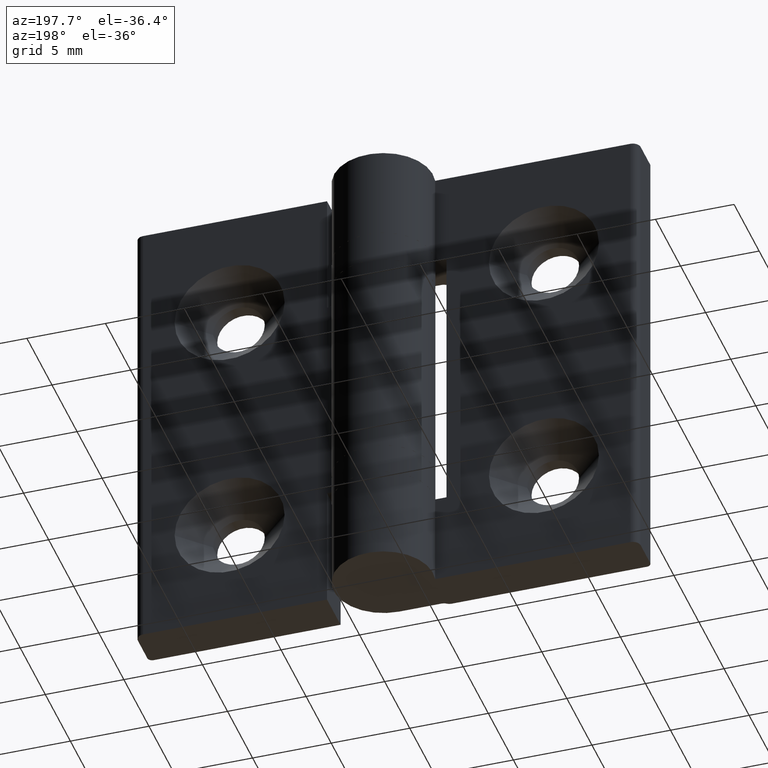
[diagram: clean part render]
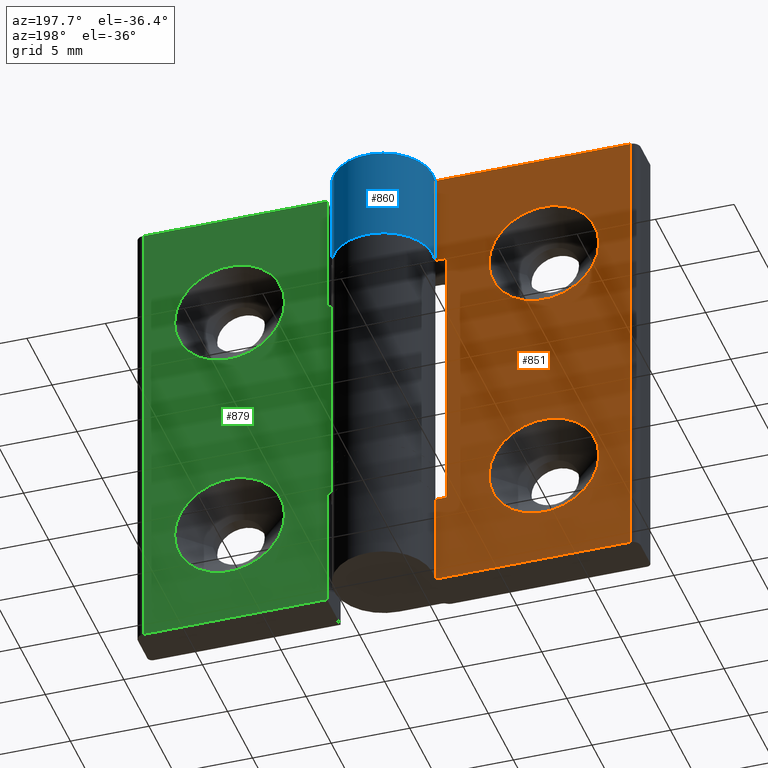
[diagram: same view with three faces highlighted in distinct colors, each labeled with its STEP entity id]
A machine part, auxiliary view with three faces highlighted in distinct colors.
Their STEP definitions:

[orange] entity #851 — the highlighted planar face has unit normal (0, 1, 0).
#54=FACE_BOUND('',#164,.T.);
#55=FACE_BOUND('',#165,.T.);
#83=PLANE('',#917);
#109=FACE_OUTER_BOUND('',#163,.T.);
#163=EDGE_LOOP('',(#630,#631,#632,#633,#634,#635,#636,#637));
#164=EDGE_LOOP('',(#638));
#165=EDGE_LOOP('',(#639));
#247=LINE('',#1330,#308);
#250=LINE('',#1345,#311);
#251=LINE('',#1348,#312);
#252=LINE('',#1350,#313);
#253=LINE('',#1352,#314);
#254=LINE('',#1354,#315);
#255=LINE('',#1356,#316);
#256=LINE('',#1357,#317);
#308=VECTOR('',#1041,12.4177929985155);
#311=VECTOR('',#1056,30.);
#312=VECTOR('',#1059,12.4177929985155);
#313=VECTOR('',#1060,6.);
#314=VECTOR('',#1061,0.717792998515511);
#315=VECTOR('',#1062,18.);
#316=VECTOR('',#1063,0.717792998515515);
#317=VECTOR('',#1064,6.);
#369=CIRCLE('',#918,3.5);
#370=CIRCLE('',#919,3.5);
#422=VERTEX_POINT('',#1327);
#423=VERTEX_POINT('',#1329);
#429=VERTEX_POINT('',#1343);
#430=VERTEX_POINT('',#1347);
#431=VERTEX_POINT('',#1349);
#432=VERTEX_POINT('',#1351);
#433=VERTEX_POINT('',#1353);
#434=VERTEX_POINT('',#1355);
#435=VERTEX_POINT('',#1358);
#436=VERTEX_POINT('',#1360);
#506=EDGE_CURVE('',#422,#423,#247,.T.);
#514=EDGE_CURVE('',#429,#422,#250,.T.);
#515=EDGE_CURVE('',#429,#430,#251,.T.);
#516=EDGE_CURVE('',#431,#430,#252,.T.);
#517=EDGE_CURVE('',#431,#432,#253,.T.);
#518=EDGE_CURVE('',#432,#433,#254,.T.);
#519=EDGE_CURVE('',#433,#434,#255,.T.);
#520=EDGE_CURVE('',#423,#434,#256,.T.);
#521=EDGE_CURVE('',#435,#435,#369,.T.);
#522=EDGE_CURVE('',#436,#436,#370,.T.);
#630=ORIENTED_EDGE('',*,*,#514,.F.);
#631=ORIENTED_EDGE('',*,*,#515,.T.);
#632=ORIENTED_EDGE('',*,*,#516,.F.);
#633=ORIENTED_EDGE('',*,*,#517,.T.);
#634=ORIENTED_EDGE('',*,*,#518,.T.);
#635=ORIENTED_EDGE('',*,*,#519,.T.);
#636=ORIENTED_EDGE('',*,*,#520,.F.);
#637=ORIENTED_EDGE('',*,*,#506,.F.);
#638=ORIENTED_EDGE('',*,*,#521,.T.);
#639=ORIENTED_EDGE('',*,*,#522,.T.);
#851=ADVANCED_FACE('',(#109,#54,#55),#83,.T.);
#917=AXIS2_PLACEMENT_3D('',#1346,#1057,#1058);
#918=AXIS2_PLACEMENT_3D('',#1359,#1065,#1066);
#919=AXIS2_PLACEMENT_3D('',#1361,#1067,#1068);
#1041=DIRECTION('',(1.,0.,0.));
#1056=DIRECTION('',(0.,0.,-1.));
#1057=DIRECTION('center_axis',(0.,1.,0.));
#1058=DIRECTION('ref_axis',(1.,0.,0.));
#1059=DIRECTION('',(1.,0.,0.));
#1060=DIRECTION('',(0.,0.,1.));
#1061=DIRECTION('',(-1.,0.,2.17565612461828E-16));
#1062=DIRECTION('',(-2.46716227694479E-16,0.,-1.));
#1063=DIRECTION('',(1.,0.,0.));
#1064=DIRECTION('',(0.,0.,1.));
#1065=DIRECTION('center_axis',(0.,-1.,0.));
#1066=DIRECTION('ref_axis',(1.,0.,0.));
#1067=DIRECTION('center_axis',(0.,-1.,0.));
#1068=DIRECTION('ref_axis',(1.,0.,0.));
#1327=CARTESIAN_POINT('',(-15.5,2.7,-30.));
#1329=CARTESIAN_POINT('',(-3.08220700148449,2.7,-30.));
#1330=CARTESIAN_POINT('',(-16.,2.7,-30.));
#1343=CARTESIAN_POINT('',(-15.5,2.7,0.));
#1345=CARTESIAN_POINT('',(-15.5,2.7,0.));
#1346=CARTESIAN_POINT('Origin',(-16.,2.7,0.));
#1347=CARTESIAN_POINT('',(-3.08220700148449,2.7,0.));
#1348=CARTESIAN_POINT('',(-16.,2.7,0.));
#1349=CARTESIAN_POINT('',(-3.08220700148449,2.7,-6.));
#1350=CARTESIAN_POINT('',(-3.08220700148449,2.7,0.));
#1351=CARTESIAN_POINT('',(-3.8,2.7,-6.));
#1352=CARTESIAN_POINT('',(-9.9,2.7,-6.));
#1353=CARTESIAN_POINT('',(-3.8,2.7,-24.));
#1354=CARTESIAN_POINT('',(-3.8,2.7,-12.));
#1355=CARTESIAN_POINT('',(-3.08220700148449,2.7,-24.));
#1356=CARTESIAN_POINT('',(-4.79706570784505,2.7,-24.));
#1357=CARTESIAN_POINT('',(-3.08220700148449,2.7,0.));
#1358=CARTESIAN_POINT('',(-6.5,2.7,-7.));
#1359=CARTESIAN_POINT('Origin',(-10.,2.7,-7.));
#1360=CARTESIAN_POINT('',(-6.5,2.7,-23.));
#1361=CARTESIAN_POINT('Origin',(-10.,2.7,-23.));

[blue] entity #860 — the highlighted cylindrical surface (partial cylindrical patch) has radius 3.15 mm, axis along (0, 0, -1).
#118=FACE_OUTER_BOUND('',#180,.T.);
#180=EDGE_LOOP('',(#672,#673,#674,#675));
#252=LINE('',#1350,#313);
#262=LINE('',#1398,#323);
#313=VECTOR('',#1060,6.);
#323=VECTOR('',#1114,6.);
#377=CIRCLE('',#933,3.15);
#381=CIRCLE('',#939,3.15);
#430=VERTEX_POINT('',#1347);
#431=VERTEX_POINT('',#1349);
#443=VERTEX_POINT('',#1384);
#447=VERTEX_POINT('',#1396);
#516=EDGE_CURVE('',#431,#430,#252,.T.);
#532=EDGE_CURVE('',#443,#431,#377,.T.);
#538=EDGE_CURVE('',#430,#447,#381,.T.);
#539=EDGE_CURVE('',#447,#443,#262,.T.);
#672=ORIENTED_EDGE('',*,*,#532,.T.);
#673=ORIENTED_EDGE('',*,*,#516,.T.);
#674=ORIENTED_EDGE('',*,*,#538,.T.);
#675=ORIENTED_EDGE('',*,*,#539,.T.);
#829=CYLINDRICAL_SURFACE('',#938,3.15);
#860=ADVANCED_FACE('',(#118),#829,.T.);
#933=AXIS2_PLACEMENT_3D('',#1385,#1098,#1099);
#938=AXIS2_PLACEMENT_3D('',#1395,#1110,#1111);
#939=AXIS2_PLACEMENT_3D('',#1397,#1112,#1113);
#1060=DIRECTION('',(0.,0.,1.));
#1098=DIRECTION('center_axis',(2.17565612461828E-16,0.,1.));
#1099=DIRECTION('ref_axis',(-1.,0.,0.));
#1110=DIRECTION('center_axis',(0.,0.,-1.));
#1111=DIRECTION('ref_axis',(-1.,0.,0.));
#1112=DIRECTION('center_axis',(0.,0.,-1.));
#1113=DIRECTION('ref_axis',(-1.,0.,0.));
#1114=DIRECTION('',(0.,0.,-1.));
#1347=CARTESIAN_POINT('',(-3.08220700148449,2.7,0.));
#1349=CARTESIAN_POINT('',(-3.08220700148449,2.7,-6.));
#1350=CARTESIAN_POINT('',(-3.08220700148449,2.7,0.));
#1384=CARTESIAN_POINT('',(1.53080849893419E-16,0.200000000000001,-6.));
#1385=CARTESIAN_POINT('Origin',(0.,3.35,-6.));
#1395=CARTESIAN_POINT('Origin',(0.,3.35,0.));
#1396=CARTESIAN_POINT('',(1.53080849893419E-16,0.200000000000001,0.));
#1397=CARTESIAN_POINT('Origin',(0.,3.35,0.));
#1398=CARTESIAN_POINT('',(1.53080849893419E-16,0.200000000000001,0.));

[green] entity #879 — the highlighted planar face has unit normal (0, 1, 0).
#69=FACE_BOUND('',#207,.T.);
#70=FACE_BOUND('',#208,.T.);
#95=PLANE('',#971);
#137=FACE_OUTER_BOUND('',#206,.T.);
#206=EDGE_LOOP('',(#744,#745,#746,#747,#748,#749,#750,#751));
#207=EDGE_LOOP('',(#752));
#208=EDGE_LOOP('',(#753));
#276=LINE('',#1456,#337);
#277=LINE('',#1460,#338);
#278=LINE('',#1464,#339);
#279=LINE('',#1466,#340);
#280=LINE('',#1468,#341);
#281=LINE('',#1470,#342);
#282=LINE('',#1472,#343);
#283=LINE('',#1473,#344);
#337=VECTOR('',#1184,11.7);
#338=VECTOR('',#1189,30.);
#339=VECTOR('',#1194,8.);
#340=VECTOR('',#1195,0.717792998515512);
#341=VECTOR('',#1196,14.);
#342=VECTOR('',#1197,0.717792998515512);
#343=VECTOR('',#1198,8.);
#344=VECTOR('',#1199,11.7);
#393=CIRCLE('',#972,3.5);
#394=CIRCLE('',#973,3.5);
#462=VERTEX_POINT('',#1453);
#463=VERTEX_POINT('',#1455);
#464=VERTEX_POINT('',#1459);
#465=VERTEX_POINT('',#1463);
#466=VERTEX_POINT('',#1465);
#467=VERTEX_POINT('',#1467);
#468=VERTEX_POINT('',#1469);
#469=VERTEX_POINT('',#1471);
#470=VERTEX_POINT('',#1474);
#471=VERTEX_POINT('',#1476);
#562=EDGE_CURVE('',#462,#463,#276,.T.);
#564=EDGE_CURVE('',#463,#464,#277,.T.);
#566=EDGE_CURVE('',#462,#465,#278,.T.);
#567=EDGE_CURVE('',#465,#466,#279,.T.);
#568=EDGE_CURVE('',#467,#466,#280,.T.);
#569=EDGE_CURVE('',#467,#468,#281,.T.);
#570=EDGE_CURVE('',#468,#469,#282,.T.);
#571=EDGE_CURVE('',#469,#464,#283,.T.);
#572=EDGE_CURVE('',#470,#470,#393,.T.);
#573=EDGE_CURVE('',#471,#471,#394,.T.);
#744=ORIENTED_EDGE('',*,*,#564,.F.);
#745=ORIENTED_EDGE('',*,*,#562,.F.);
#746=ORIENTED_EDGE('',*,*,#566,.T.);
#747=ORIENTED_EDGE('',*,*,#567,.T.);
#748=ORIENTED_EDGE('',*,*,#568,.F.);
#749=ORIENTED_EDGE('',*,*,#569,.T.);
#750=ORIENTED_EDGE('',*,*,#570,.T.);
#751=ORIENTED_EDGE('',*,*,#571,.T.);
#752=ORIENTED_EDGE('',*,*,#572,.T.);
#753=ORIENTED_EDGE('',*,*,#573,.T.);
#879=ADVANCED_FACE('',(#137,#69,#70),#95,.T.);
#971=AXIS2_PLACEMENT_3D('',#1462,#1192,#1193);
#972=AXIS2_PLACEMENT_3D('',#1475,#1200,#1201);
#973=AXIS2_PLACEMENT_3D('',#1477,#1202,#1203);
#1184=DIRECTION('',(1.,0.,0.));
#1189=DIRECTION('',(0.,0.,1.));
#1192=DIRECTION('center_axis',(0.,1.,0.));
#1193=DIRECTION('ref_axis',(1.,0.,0.));
#1194=DIRECTION('',(1.04083408558608E-16,0.,1.));
#1195=DIRECTION('',(-1.,0.,0.));
#1196=DIRECTION('',(0.,0.,-1.));
#1197=DIRECTION('',(1.,0.,-1.34847054058434E-16));
#1198=DIRECTION('',(1.73472347597681E-16,0.,1.));
#1199=DIRECTION('',(1.,0.,0.));
#1200=DIRECTION('center_axis',(0.,-1.,0.));
#1201=DIRECTION('ref_axis',(1.,0.,0.));
#1202=DIRECTION('center_axis',(0.,-1.,0.));
#1203=DIRECTION('ref_axis',(1.,0.,0.));
#1453=CARTESIAN_POINT('',(3.8,-0.649999999999999,-30.));
#1455=CARTESIAN_POINT('',(15.5,-0.649999999999999,-30.));
#1456=CARTESIAN_POINT('',(-5.55111512312578E-16,-0.649999999999999,-30.));
#1459=CARTESIAN_POINT('',(15.5,-0.649999999999999,0.));
#1460=CARTESIAN_POINT('',(15.5,-0.649999999999999,0.));
#1462=CARTESIAN_POINT('Origin',(-5.55111512312578E-16,-0.649999999999999,
0.));
#1463=CARTESIAN_POINT('',(3.8,-0.649999999999999,-22.));
#1464=CARTESIAN_POINT('',(3.8,-0.649999999999999,-11.));
#1465=CARTESIAN_POINT('',(3.08220700148449,-0.649999999999999,-22.));
#1466=CARTESIAN_POINT('',(-2.7235997448302,-0.649999999999999,-22.));
#1467=CARTESIAN_POINT('',(3.08220700148449,-0.649999999999999,-8.));
#1468=CARTESIAN_POINT('',(3.08220700148449,-0.649999999999999,0.));
#1469=CARTESIAN_POINT('',(3.8,-0.649999999999999,-8.));
#1470=CARTESIAN_POINT('',(1.9,-0.649999999999999,-8.));
#1471=CARTESIAN_POINT('',(3.8,-0.649999999999999,0.));
#1472=CARTESIAN_POINT('',(3.8,-0.649999999999999,-3.29597460435594E-16));
#1473=CARTESIAN_POINT('',(-5.55111512312578E-16,-0.649999999999999,0.));
#1474=CARTESIAN_POINT('',(13.5,-0.649999999999999,-23.));
#1475=CARTESIAN_POINT('Origin',(10.,-0.649999999999999,-23.));
#1476=CARTESIAN_POINT('',(13.5,-0.649999999999999,-7.));
#1477=CARTESIAN_POINT('Origin',(10.,-0.649999999999999,-7.));